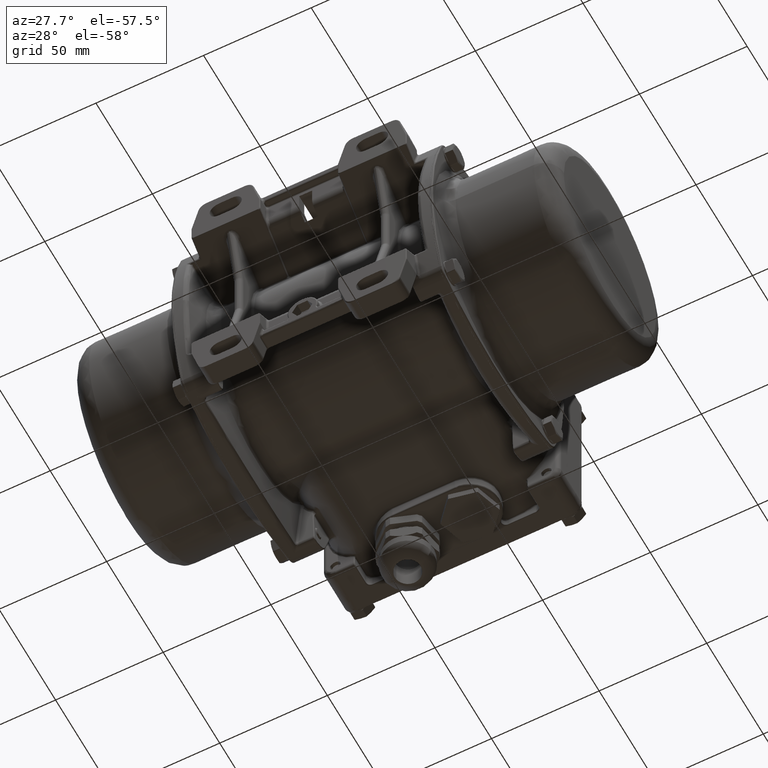
[diagram: clean part render]
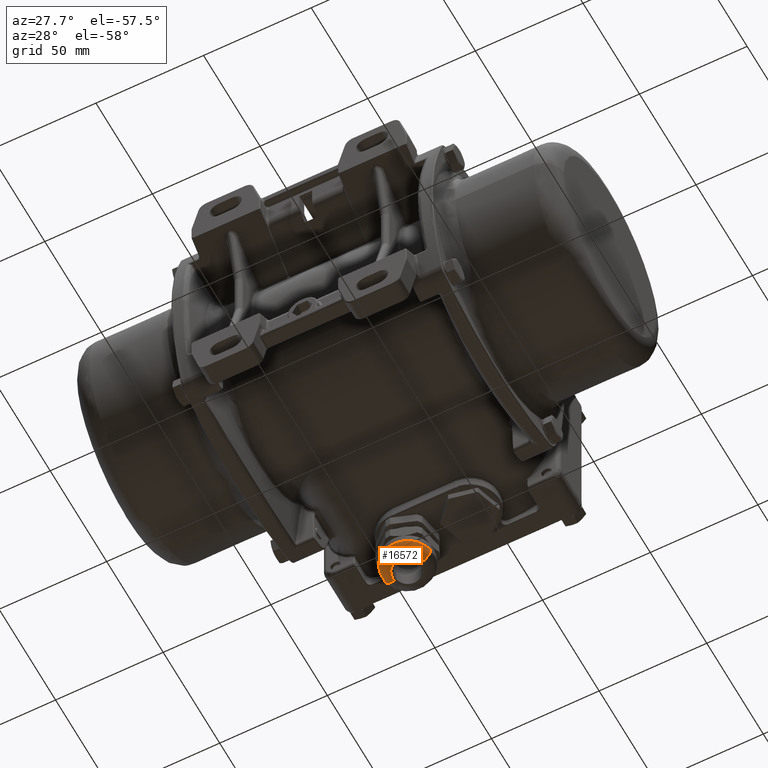
[diagram: same view with one face highlighted and labeled with its STEP entity id]
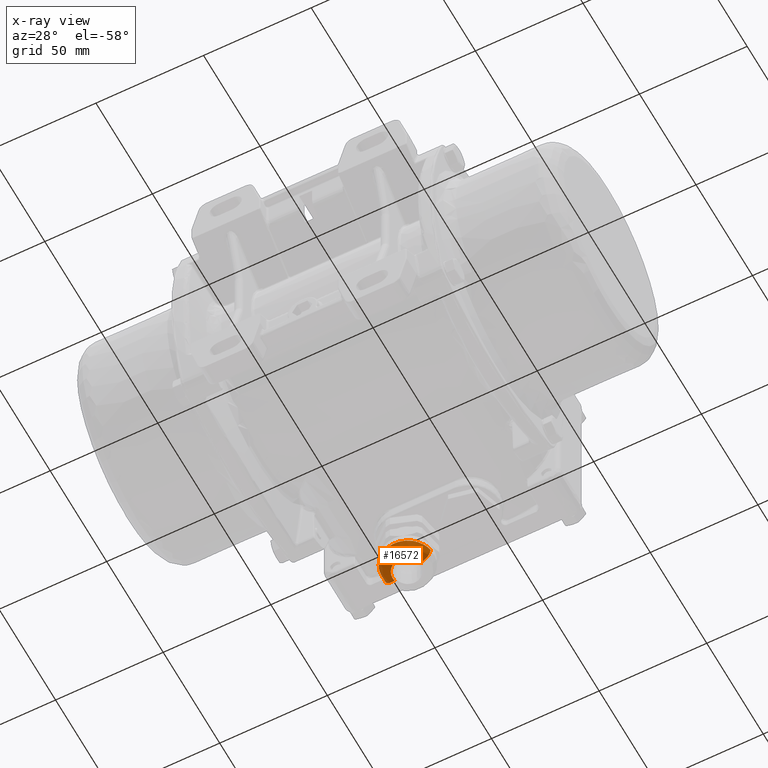
[diagram: x-ray of the same camera — body ghosted, the highlighted face saturated]
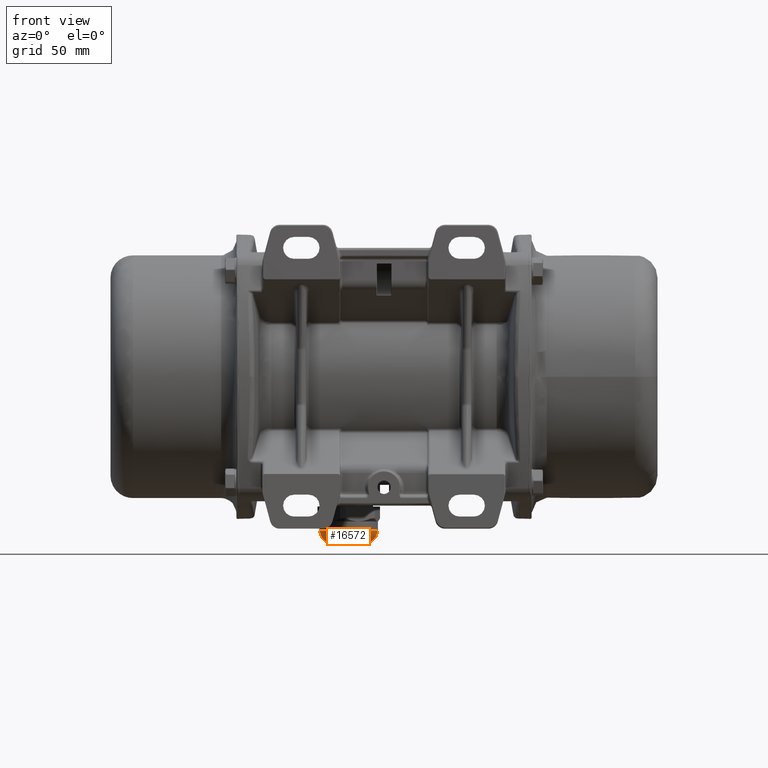
[diagram: same view with one face highlighted and labeled with its STEP entity id]
A machine part, auxiliary view. The second image highlights one B-rep face of the part: STEP entity #16572.
The next image is the same camera in x-ray: the body ghosted, the highlighted face saturated — about 0% of this face is hidden behind the body in this view.
A second angle (front view) of the same face is appended — the face is thin or edge-on in the first view.
In plain terms, the highlighted face is a freeform B-spline surface patch.
Its self-contained STEP definition (entity closure, byte-faithful):
#556 = CARTESIAN_POINT ( 'NONE',  ( 66.95013515293381100, 10.06078733776011300, -65.46505236173264600 ) ) ;
#1284 = CARTESIAN_POINT ( 'NONE',  ( 51.46316612567327600, 3.307523057532178300, -64.15046102098554600 ) ) ;
#2000 = CARTESIAN_POINT ( 'NONE',  ( 62.43416385365141300, 10.27122674344412600, -68.50034515125868500 ) ) ;
#2712 = CARTESIAN_POINT ( 'NONE',  ( 65.91203985066276500, 10.48163224879457700, -67.12712782023533000 ) ) ;
#3438 = CARTESIAN_POINT ( 'NONE',  ( 49.36679815098313600, 4.407673035038730100, -64.15046102094613900 ) ) ;
#4182 = CARTESIAN_POINT ( 'NONE',  ( 47.70873580315965500, 6.081867185871659300, -65.46505248905720000 ) ) ;
#4394 = CARTESIAN_POINT ( 'NONE',  ( 45.95817358068363500, 7.681019920902243400, -63.49999999999998600 ) ) ;
#4890 = CARTESIAN_POINT ( 'NONE',  ( 47.52533990418348300, 5.895665019205376100, -64.15046102095598700 ) ) ;
#5599 = CARTESIAN_POINT ( 'NONE',  ( 45.30479039199027400, 14.41878267970982800, -67.12712772781769400 ) ) ;
#6312 = CARTESIAN_POINT ( 'NONE',  ( 47.19400036811182300, 16.18220602149885700, -68.23964003526738500 ) ) ;
#6966 = CARTESIAN_POINT ( 'NONE',  ( 63.51440539744434900, 13.06450110997006300, -68.49999999999998600 ) ) ;
#7093 = CARTESIAN_POINT ( 'NONE',  ( 59.95841196726989600, 8.672075616455883200, -68.49999999999998600 ) ) ;
#7602 = CARTESIAN_POINT ( 'NONE',  ( 50.71539552742847000, 3.572525763793573500, -63.49999999999998600 ) ) ;
#8384 = CARTESIAN_POINT ( 'NONE',  ( 66.43829632553101300, 12.50594701214672700, -67.12706455736473300 ) ) ;
#8850 = EDGE_LOOP ( 'NONE', ( #200078, #96929, #212489, #209557, #190798 ) ) ;
#9262 = CARTESIAN_POINT ( 'NONE',  ( 50.17206763606254300, 10.54156507904071700, -68.49999999999998600 ) ) ;
#13388 = VERTEX_POINT ( 'NONE', #20500 ) ;
#16572 = ADVANCED_FACE ( 'NONE', ( #41511 ), #17612, .F. ) ;
#16695 = CARTESIAN_POINT ( 'NONE',  ( 67.19234302605613600, 9.962596015062656500, -64.15046125643542000 ) ) ;
#17431 = CARTESIAN_POINT ( 'NONE',  ( 59.95841196726989600, 8.672075616455883200, -68.49999999999998600 ) ) ;
#17612 = B_SPLINE_SURFACE_WITH_KNOTS ( 'NONE', 3, 3, ( 
 ( #49730, #167171, #64437, #198756, #32143, #32891, #150302 ),
 ( #200957, #98196, #66614, #115080, #184047, #83477, #214235 ),
 ( #113612, #134141, #18129, #2712, #556, #16695, #119451 ),
 ( #170048, #2000, #19583, #68793, #167867, #117280, #101838 ),
 ( #34333, #186224, #184774, #18845, #203856, #33621, #120175 ),
 ( #17431, #135597, #51165, #86367, #35069, #52606, #153195 ),
 ( #151757, #151031, #103278, #67352, #134862, #186938, #137023 ),
 ( #187674, #53338, #217875, #36505, #168582, #153941, #170763 ),
 ( #85659, #118003, #68074, #84922, #69537, #70263, #35799 ),
 ( #87075, #100371, #50443, #84194, #185516, #201702, #152475 ),
 ( #203123, #51894, #202407, #102553, #101112, #1284, #118721 ),
 ( #169319, #136322, #37947, #73134, #104713, #3438, #206020 ),
 ( #21715, #23163, #54078, #38654, #4182, #4890, #88545 ),
 ( #156066, #55473, #72401, #157499, #155354, #139170, #70956 ),
 ( #156788, #89245, #39365, #190529, #207453, #105420, #188402 ),
 ( #189104, #206749, #56190, #106136, #40051, #56907, #189807 ),
 ( #174347, #20304, #121609, #5599, #139887, #173627, #89950 ),
 ( #122346, #172932, #120887, #22441, #137754, #106844, #172222 ),
 ( #37211, #123076, #6312, #21007, #154641, #123770, #140617 ) ),
 .UNSPECIFIED., .F., .F., .F.,
 ( 4, 1, 1, 1, 1, 1, 1, 1, 1, 1, 1, 1, 1, 1, 1, 1, 4 ),
 ( 4, 1, 1, 1, 4 ),
 ( 0.0000000000000000000, 1.963022545427453000, 3.926045090854906100, 5.889067636282359100, 7.852090181709811200, 9.815112727137265100, 11.77813527256471800, 13.74115781799217100, 15.70418036341962400, 17.66720290884707700, 19.63022545427453000, 21.59324799970198000, 23.55627054512943600, 25.51929309055689300, 27.48231563598434200, 29.44533818141179200, 31.40836072683924800 ),
 ( 0.0000000000000000000, 1.950903220161281900, 3.901806440322567000, 5.852709660483847100, 7.803612880645125900 ),
 .UNSPECIFIED. ) ;
#18129 = CARTESIAN_POINT ( 'NONE',  ( 64.36206233175231300, 11.10999474077797400, -68.23963979292247500 ) ) ;
#18845 = CARTESIAN_POINT ( 'NONE',  ( 63.62004762917300100, 6.994727525972228600, -67.12712774671126700 ) ) ;
#19583 = CARTESIAN_POINT ( 'NONE',  ( 63.54021750421337300, 9.544290293005444100, -68.23964016262904400 ) ) ;
#20304 = CARTESIAN_POINT ( 'NONE',  ( 48.30075180579000000, 14.44153028160994400, -68.50034541605668900 ) ) ;
#20500 = CARTESIAN_POINT ( 'NONE',  ( 44.21312823790509600, 16.75164530099478100, -63.49999999999998600 ) ) ;
#20522 = CARTESIAN_POINT ( 'NONE',  ( 44.21312823790509600, 16.75164530099478100, -63.49999999999998600 ) ) ;
#20881 = CARTESIAN_POINT ( 'NONE',  ( 67.59091257728589100, 11.22266954230586900, -63.50000000000000000 ) ) ;
#21007 = CARTESIAN_POINT ( 'NONE',  ( 45.56174005493043900, 16.49401850324504400, -67.12712772781769400 ) ) ;
#21598 = CARTESIAN_POINT ( 'NONE',  ( 48.15657796393183800, 5.418111783793714100, -63.49999999999998600 ) ) ;
#21715 = CARTESIAN_POINT ( 'NONE',  ( 51.05629961203930400, 9.480654387476654700, -68.49999999999998600 ) ) ;
#22441 = CARTESIAN_POINT ( 'NONE',  ( 45.43123219156309000, 15.81084249714141700, -67.12712772781769400 ) ) ;
#23031 = CARTESIAN_POINT ( 'NONE',  ( 53.72218399274507300, 2.577958439561184500, -63.49999999999998600 ) ) ;
#23100 = CARTESIAN_POINT ( 'NONE',  ( 62.87565481506324300, 13.18652233581294600, -68.49999999999998600 ) ) ;
#23163 = CARTESIAN_POINT ( 'NONE',  ( 50.59714195978249100, 9.014470845920284200, -68.50034541606078200 ) ) ;
#23922 = CARTESIAN_POINT ( 'NONE',  ( 61.88735899625778100, 10.63060567765260900, -68.49999999999998600 ) ) ;
#25401 = CARTESIAN_POINT ( 'NONE',  ( 51.05629961203930400, 9.480654387476654700, -68.49999999999998600 ) ) ;
#27323 = CARTESIAN_POINT ( 'NONE',  ( 67.78684601957853300, 12.24833208181773100, -63.50000000000000000 ) ) ;
#30508 = EDGE_CURVE ( 'NONE', #103960, #79296, #169680, .T. ) ;
#31970 = CARTESIAN_POINT ( 'NONE',  ( 44.21312823790509600, 16.75164530099478100, -63.49999999999998600 ) ) ;
#32143 = CARTESIAN_POINT ( 'NONE',  ( 67.53127364002497800, 12.29715435439938900, -65.46513908671637700 ) ) ;
#32891 = CARTESIAN_POINT ( 'NONE',  ( 67.78684601957853300, 12.24833208181772700, -64.15030107338709800 ) ) ;
#33621 = CARTESIAN_POINT ( 'NONE',  ( 64.60430288152517200, 6.025300482455281600, -64.15046106909481700 ) ) ;
#34333 = CARTESIAN_POINT ( 'NONE',  ( 61.01931685657044100, 9.556277223413431400, -68.49999999999998600 ) ) ;
#35069 = CARTESIAN_POINT ( 'NONE',  ( 62.63881594446512900, 4.725768178001716000, -65.46505249793531800 ) ) ;
#35799 = CARTESIAN_POINT ( 'NONE',  ( 56.09168484121101300, 2.422982268423377900, -63.50000000000000000 ) ) ;
#36505 = CARTESIAN_POINT ( 'NONE',  ( 58.16616229884181200, 4.026140366879652700, -67.12712772721326400 ) ) ;
#37211 = CARTESIAN_POINT ( 'NONE',  ( 49.12431944242038600, 15.81345504699956500, -68.49999999999998600 ) ) ;
#37947 = CARTESIAN_POINT ( 'NONE',  ( 51.04417421136663100, 6.959780133537900100, -68.23964003527555600 ) ) ;
#38654 = CARTESIAN_POINT ( 'NONE',  ( 48.49476231141753100, 6.879921230219592200, -67.12712772781843300 ) ) ;
#39365 = CARTESIAN_POINT ( 'NONE',  ( 47.69026385598824200, 10.98383654015614600, -68.23964003526730000 ) ) ;
#40051 = CARTESIAN_POINT ( 'NONE',  ( 44.42920587790830900, 12.10694889865650700, -65.46505248905825200 ) ) ;
#41511 = FACE_OUTER_BOUND ( 'NONE', #8850, .T. ) ;
#41571 = CARTESIAN_POINT ( 'NONE',  ( 49.12431944242039400, 15.81345504699957200, -68.49999999999998600 ) ) ;
#42272 = CARTESIAN_POINT ( 'NONE',  ( 62.78982667100034800, 12.73723347949988500, -68.49999999999998600 ) ) ;
#49730 = CARTESIAN_POINT ( 'NONE',  ( 62.87565481506324300, 13.18652233581294600, -68.49999999999998600 ) ) ;
#50443 = CARTESIAN_POINT ( 'NONE',  ( 54.30692590782992800, 5.637236875940513600, -68.23964003539055100 ) ) ;
#51165 = CARTESIAN_POINT ( 'NONE',  ( 61.06972555668544100, 7.035909903496902400, -68.23964005216375000 ) ) ;
#51894 = CARTESIAN_POINT ( 'NONE',  ( 53.10762585524018700, 7.364451685974603200, -68.50034541612399200 ) ) ;
#52606 = CARTESIAN_POINT ( 'NONE',  ( 62.78566159900739100, 4.509570133320734100, -64.15046100453648100 ) ) ;
#53338 = CARTESIAN_POINT ( 'NONE',  ( 57.55936867151942900, 6.960097188372807300, -68.50034541276132000 ) ) ;
#54078 = CARTESIAN_POINT ( 'NONE',  ( 49.66837705000191500, 8.071494260891871200, -68.23964003526542400 ) ) ;
#55473 = CARTESIAN_POINT ( 'NONE',  ( 49.63078467212742600, 10.17391633782124500, -68.50034541605576500 ) ) ;
#56055 = CARTESIAN_POINT ( 'NONE',  ( 48.94684895244375200, 4.735583157795245400, -63.49999999999998600 ) ) ;
#56190 = CARTESIAN_POINT ( 'NONE',  ( 47.16396560318127500, 12.67254500701921000, -68.23964003526739900 ) ) ;
#56842 = CARTESIAN_POINT ( 'NONE',  ( 67.78684601957853300, 12.24833208181773100, -63.50000000000000000 ) ) ;
#56907 = CARTESIAN_POINT ( 'NONE',  ( 44.17326937977600200, 12.05401675767393700, -64.15046102095406900 ) ) ;
#56963 = CARTESIAN_POINT ( 'NONE',  ( 49.51179933766034200, 11.75459576910185400, -68.49999999999998600 ) ) ;
#57678 = CARTESIAN_POINT ( 'NONE',  ( 52.13051472755583400, 8.612633902131607400, -68.49999999999998600 ) ) ;
#58407 = CARTESIAN_POINT ( 'NONE',  ( 62.52905093777183500, 11.85309945894523600, -68.49999999999998600 ) ) ;
#61614 = EDGE_CURVE ( 'NONE', #216432, #13388, #111321, .T. ) ;
#64437 = CARTESIAN_POINT ( 'NONE',  ( 64.80588957472937800, 12.81778746803246900, -68.23980611942111800 ) ) ;
#66614 = CARTESIAN_POINT ( 'NONE',  ( 64.69599422653318800, 12.24236069607551000, -68.23975093530432900 ) ) ;
#67352 = CARTESIAN_POINT ( 'NONE',  ( 60.16788579838684800, 4.649988916659539000, -67.12712772984782800 ) ) ;
#67899 = CARTESIAN_POINT ( 'NONE',  ( 45.56174005493043900, 16.49401850324504400, -67.12712772781769400 ) ) ;
#68074 = CARTESIAN_POINT ( 'NONE',  ( 56.06849468020088500, 5.477232106590475000, -68.23964003481653200 ) ) ;
#68793 = CARTESIAN_POINT ( 'NONE',  ( 64.93785982033999500, 8.625711755922898400, -67.12712767924892900 ) ) ;
#69537 = CARTESIAN_POINT ( 'NONE',  ( 56.08969785315328200, 2.684677646524136200, -65.46505248882137100 ) ) ;
#70263 = CARTESIAN_POINT ( 'NONE',  ( 56.09168218316762700, 2.423332344844739700, -64.15046102139216100 ) ) ;
#70956 = CARTESIAN_POINT ( 'NONE',  ( 46.00926799843450300, 7.714119641636771400, -63.49999999999998600 ) ) ;
#72268 = CARTESIAN_POINT ( 'NONE',  ( 66.92629408556335600, 9.213007443819499500, -63.50000000000000000 ) ) ;
#72401 = CARTESIAN_POINT ( 'NONE',  ( 48.53590011408754600, 9.430251828933698700, -68.23964003526784000 ) ) ;
#73000 = CARTESIAN_POINT ( 'NONE',  ( 56.88585161565311000, 2.394419281542863800, -63.50000000000000000 ) ) ;
#73134 = CARTESIAN_POINT ( 'NONE',  ( 50.12557451725989200, 5.562141967965781800, -67.12712772781456700 ) ) ;
#73195 = CARTESIAN_POINT ( 'NONE',  ( 49.03835398360144600, 15.36344738230058300, -68.49999999999998600 ) ) ;
#77291 = B_SPLINE_CURVE_WITH_KNOTS ( 'NONE', 3,
 ( #41571, #73195, #109804, #90741, #56963, #9262, #25401, #57678, #190593, #125275, #142849, #159009, #92936, #7093, #124544, #23922, #58407, #42272, #126682 ),
 .UNSPECIFIED., .F., .F.,
 ( 4, 1, 1, 1, 1, 1, 1, 1, 1, 1, 1, 1, 1, 1, 1, 1, 4 ),
 ( 0.0000000000000000000, 0.06250000000000011100, 0.1250000000000000000, 0.1874999999999998900, 0.2500000000000000000, 0.3125000000000001100, 0.3750000000000000000, 0.4375000000000000000, 0.5000000000000000000, 0.5625000000000000000, 0.6250000000000000000, 0.6875000000000000000, 0.7500000000000000000, 0.8125000000000000000, 0.8750000000000000000, 0.9375000000000000000, 1.000000000000000000 ),
 .UNSPECIFIED. ) ;
#79296 = VERTEX_POINT ( 'NONE', #27323 ) ;
#83477 = CARTESIAN_POINT ( 'NONE',  ( 67.63960045167353000, 11.47815158879516400, -64.15035390280159800 ) ) ;
#84194 = CARTESIAN_POINT ( 'NONE',  ( 53.99310342387620000, 3.994454704190793800, -67.12712772777071300 ) ) ;
#84922 = CARTESIAN_POINT ( 'NONE',  ( 56.08119310462614500, 3.804791767392782900, -67.12712772798961700 ) ) ;
#85659 = CARTESIAN_POINT ( 'NONE',  ( 56.05347746101551800, 7.455068277999569800, -68.49999999999998600 ) ) ;
#86367 = CARTESIAN_POINT ( 'NONE',  ( 62.00944226791056500, 5.652382987741514600, -67.12712772137433600 ) ) ;
#87075 = CARTESIAN_POINT ( 'NONE',  ( 54.67805392078891900, 7.579999151749366800, -68.49999999999998600 ) ) ;
#88545 = CARTESIAN_POINT ( 'NONE',  ( 47.52509424296608400, 5.895415598955516100, -63.50000000000000000 ) ) ;
#89245 = CARTESIAN_POINT ( 'NONE',  ( 48.90919226278002400, 11.49961036307198200, -68.50034541605688800 ) ) ;
#89950 = CARTESIAN_POINT ( 'NONE',  ( 43.92298091741079700, 14.40829093849955800, -63.49999999999998600 ) ) ;
#90741 = CARTESIAN_POINT ( 'NONE',  ( 49.10086845750378600, 13.07313036980536400, -68.49999999999998600 ) ) ;
#91290 = CARTESIAN_POINT ( 'NONE',  ( 65.18628340633657100, 6.566820777356132200, -63.50000000000000000 ) ) ;
#92936 = CARTESIAN_POINT ( 'NONE',  ( 58.74537972249696300, 8.011799180699505000, -68.49999999999998600 ) ) ;
#96929 = ORIENTED_EDGE ( 'NONE', *, *, #157010, .T. ) ;
#98196 = CARTESIAN_POINT ( 'NONE',  ( 63.42055275639345500, 12.57348650324333100, -68.50011479429657900 ) ) ;
#98764 = CARTESIAN_POINT ( 'NONE',  ( 44.21346990288056100, 16.75158003235897700, -64.15046102095408300 ) ) ;
#100371 = CARTESIAN_POINT ( 'NONE',  ( 54.55527598503464000, 6.937287382343134500, -68.50034541580060900 ) ) ;
#100935 = CARTESIAN_POINT ( 'NONE',  ( 49.12431944242039400, 15.81345504699957200, -68.49999999999998600 ) ) ;
#101112 = CARTESIAN_POINT ( 'NONE',  ( 51.56134535886200600, 3.549734000543095700, -65.46505248904122700 ) ) ;
#101838 = CARTESIAN_POINT ( 'NONE',  ( 66.09262461591203000, 7.866760667828582900, -63.50000000000000000 ) ) ;
#102553 = CARTESIAN_POINT ( 'NONE',  ( 51.98213710125499900, 4.587839121412138800, -67.12712772783002900 ) ) ;
#103278 = CARTESIAN_POINT ( 'NONE',  ( 59.51613886028145800, 6.190263213701571800, -68.23964002994377200 ) ) ;
#103794 = VERTEX_POINT ( 'NONE', #126775 ) ;
#103960 = VERTEX_POINT ( 'NONE', #21598 ) ;
#104713 = CARTESIAN_POINT ( 'NONE',  ( 49.51034390853110500, 4.626076144186374300, -65.46505248906254300 ) ) ;
#105420 = CARTESIAN_POINT ( 'NONE',  ( 44.87770189725219400, 9.793737248383104400, -64.15046102095416800 ) ) ;
#106136 = CARTESIAN_POINT ( 'NONE',  ( 45.52613810529422300, 12.33381365507864100, -67.12712772781769400 ) ) ;
#106716 = CARTESIAN_POINT ( 'NONE',  ( 62.81984061430771500, 4.459113975446224600, -63.50000000000000000 ) ) ;
#106844 = CARTESIAN_POINT ( 'NONE',  ( 44.06610481669200400, 15.98016068318128500, -64.15046102095408300 ) ) ;
#108196 = CARTESIAN_POINT ( 'NONE',  ( 67.78684601957853300, 12.24833208181772700, -64.15030107338709800 ) ) ;
#109804 = CARTESIAN_POINT ( 'NONE',  ( 48.95506683879870700, 14.44649833554401400, -68.49999999999998600 ) ) ;
#111321 = B_SPLINE_CURVE_WITH_KNOTS ( 'NONE', 3,
 ( #100935, #117823, #116370, #67899, #135422, #98764, #31970 ),
 .UNSPECIFIED., .F., .F.,
 ( 4, 1, 1, 1, 4 ),
 ( 0.0000000000000000000, 1.950903220161281900, 3.901806440322567000, 5.852709660483847100, 7.803612880645125000 ),
 .UNSPECIFIED. ) ;
#113612 = CARTESIAN_POINT ( 'NONE',  ( 62.52905093777183500, 11.85309945894523600, -68.49999999999998600 ) ) ;
#115080 = CARTESIAN_POINT ( 'NONE',  ( 66.30797581814445600, 11.82386347910523800, -67.12708551032861200 ) ) ;
#116370 = CARTESIAN_POINT ( 'NONE',  ( 47.19400036811182300, 16.18220602149885700, -68.23964003526738500 ) ) ;
#117280 = CARTESIAN_POINT ( 'NONE',  ( 66.09233228708022500, 7.866952796377904500, -64.15046089720196700 ) ) ;
#117823 = CARTESIAN_POINT ( 'NONE',  ( 48.48572417888637200, 15.93544660211236200, -68.50034541605668900 ) ) ;
#118003 = CARTESIAN_POINT ( 'NONE',  ( 56.05844551275546200, 6.800753233954776700, -68.50034541699406500 ) ) ;
#118721 = CARTESIAN_POINT ( 'NONE',  ( 51.46303461327558200, 3.307198612730275500, -63.49999999999998600 ) ) ;
#119451 = CARTESIAN_POINT ( 'NONE',  ( 67.19266794422183900, 9.962464292901657400, -63.50000000000000000 ) ) ;
#120175 = CARTESIAN_POINT ( 'NONE',  ( 64.60455237644804100, 6.025054746275713100, -63.50000000000000000 ) ) ;
#120887 = CARTESIAN_POINT ( 'NONE',  ( 47.08390041465754200, 15.60586031686207600, -68.23964003526738500 ) ) ;
#121609 = CARTESIAN_POINT ( 'NONE',  ( 46.97723070228580900, 14.43148110973802300, -68.23964003526738500 ) ) ;
#122346 = CARTESIAN_POINT ( 'NONE',  ( 49.03835398360144600, 15.36344738230058300, -68.49999999999998600 ) ) ;
#123076 = CARTESIAN_POINT ( 'NONE',  ( 48.48572417888637200, 15.93544660211236200, -68.50034541605668900 ) ) ;
#123770 = CARTESIAN_POINT ( 'NONE',  ( 44.21346990288056100, 16.75158003235897700, -64.15046102095408300 ) ) ;
#124347 = CARTESIAN_POINT ( 'NONE',  ( 67.78684601957853300, 12.24833208181773100, -63.50000000000000000 ) ) ;
#124544 = CARTESIAN_POINT ( 'NONE',  ( 61.01931685657044100, 9.556277223413431400, -68.49999999999998600 ) ) ;
#125275 = CARTESIAN_POINT ( 'NONE',  ( 54.67805392078891900, 7.579999151749366800, -68.49999999999998600 ) ) ;
#126682 = CARTESIAN_POINT ( 'NONE',  ( 62.87565481506324300, 13.18652233581294600, -68.49999999999998600 ) ) ;
#126775 = CARTESIAN_POINT ( 'NONE',  ( 62.87565481506324300, 13.18652233581294600, -68.49999999999998600 ) ) ;
#130714 = B_SPLINE_CURVE_WITH_KNOTS ( 'NONE', 3,
 ( #23100, #6966, #139094, #8384, #157430, #108196, #56842 ),
 .UNSPECIFIED., .F., .F.,
 ( 4, 1, 1, 1, 4 ),
 ( 0.0000000000000000000, 1.950903220161281900, 3.901806440322567000, 5.852709660483847100, 7.803612880645125000 ),
 .UNSPECIFIED. ) ;
#134141 = CARTESIAN_POINT ( 'NONE',  ( 63.13545426294803100, 11.60726292266915200, -68.50034591991642700 ) ) ;
#134862 = CARTESIAN_POINT ( 'NONE',  ( 60.60439222428259100, 3.618392772525168800, -65.46505248626128500 ) ) ;
#135422 = CARTESIAN_POINT ( 'NONE',  ( 44.46853644018978000, 16.70285439137725100, -65.46505248905825200 ) ) ;
#135597 = CARTESIAN_POINT ( 'NONE',  ( 60.32606083144602100, 8.130793235224816200, -68.50034538092741300 ) ) ;
#136322 = CARTESIAN_POINT ( 'NONE',  ( 51.77112755811505500, 8.065830732644599300, -68.50034541603970700 ) ) ;
#137023 = CARTESIAN_POINT ( 'NONE',  ( 60.70637443232207200, 3.377378101623265600, -63.49999999999998600 ) ) ;
#137754 = CARTESIAN_POINT ( 'NONE',  ( 44.32436041329111000, 15.94812896954362100, -65.46505248905825200 ) ) ;
#139094 = CARTESIAN_POINT ( 'NONE',  ( 64.80588957472937800, 12.81778746803246900, -68.23980611942111800 ) ) ;
#139170 = CARTESIAN_POINT ( 'NONE',  ( 46.00955759881309600, 7.714316343217536300, -64.15046102095364200 ) ) ;
#139887 = CARTESIAN_POINT ( 'NONE',  ( 44.18467629138486100, 14.41027792743701100, -65.46505248905823700 ) ) ;
#140474 = EDGE_CURVE ( 'NONE', #216432, #103794, #77291, .T. ) ;
#140617 = CARTESIAN_POINT ( 'NONE',  ( 44.21312823790508900, 16.75164530099478500, -63.50000000000000000 ) ) ;
#140842 = CARTESIAN_POINT ( 'NONE',  ( 43.89440780572740400, 13.61425968067582000, -63.49999999999998600 ) ) ;
#142849 = CARTESIAN_POINT ( 'NONE',  ( 56.05347746101551800, 7.455068277999569800, -68.49999999999998600 ) ) ;
#150302 = CARTESIAN_POINT ( 'NONE',  ( 67.78684601957853300, 12.24833208181772700, -63.50000000000000000 ) ) ;
#151031 = CARTESIAN_POINT ( 'NONE',  ( 59.00036509602917100, 7.409191950790565300, -68.50034542712504000 ) ) ;
#151757 = CARTESIAN_POINT ( 'NONE',  ( 58.74537972249696300, 8.011799180699505000, -68.49999999999998600 ) ) ;
#152475 = CARTESIAN_POINT ( 'NONE',  ( 53.73381591510828100, 2.637149480565889300, -63.49999999999998600 ) ) ;
#153195 = CARTESIAN_POINT ( 'NONE',  ( 62.78585828050424300, 4.509280562919907500, -63.50000000000000000 ) ) ;
#153941 = CARTESIAN_POINT ( 'NONE',  ( 58.44595921406713800, 2.673271729019131000, -64.15046101941399600 ) ) ;
#154641 = CARTESIAN_POINT ( 'NONE',  ( 44.46853644018978000, 16.70285439137725100, -65.46505248905825200 ) ) ;
#155354 = CARTESIAN_POINT ( 'NONE',  ( 46.22575583766632000, 7.861161922450992100, -65.46505248905846500 ) ) ;
#156066 = CARTESIAN_POINT ( 'NONE',  ( 50.17206763606254300, 10.54156507904071700, -68.49999999999998600 ) ) ;
#156788 = CARTESIAN_POINT ( 'NONE',  ( 49.51179933766034200, 11.75459576910185400, -68.49999999999998600 ) ) ;
#157010 = EDGE_CURVE ( 'NONE', #103794, #79296, #130714, .T. ) ;
#157430 = CARTESIAN_POINT ( 'NONE',  ( 67.53127364002497800, 12.29715435439938900, -65.46513908671637700 ) ) ;
#157499 = CARTESIAN_POINT ( 'NONE',  ( 47.15237168742380900, 8.490535417379964800, -67.12712772781752300 ) ) ;
#159009 = CARTESIAN_POINT ( 'NONE',  ( 57.42684553837715100, 7.600870480940442600, -68.49999999999998600 ) ) ;
#167171 = CARTESIAN_POINT ( 'NONE',  ( 63.51440539744434900, 13.06450110997006300, -68.49999999999998600 ) ) ;
#167867 = CARTESIAN_POINT ( 'NONE',  ( 65.87392821006230300, 8.010495457647616400, -65.46505255597165300 ) ) ;
#168582 = CARTESIAN_POINT ( 'NONE',  ( 58.39302706881035500, 2.929208214933995100, -65.46505248989096500 ) ) ;
#169319 = CARTESIAN_POINT ( 'NONE',  ( 52.13051472755583400, 8.612633902131607400, -68.49999999999998600 ) ) ;
#169680 = B_SPLINE_CURVE_WITH_KNOTS ( 'NONE', 3,
 ( #207320, #56055, #7602, #23031, #73000, #190402, #106716, #91290, #72268, #20881, #124347 ),
 .UNSPECIFIED., .F., .F.,
 ( 4, 1, 1, 1, 1, 1, 1, 1, 4 ),
 ( 0.0000000000000000000, 0.1249999999999999900, 0.2499999999999999700, 0.3749999999999999400, 0.5000000000000000000, 0.6250000000000000000, 0.7500000000000000000, 0.8750000000000000000, 1.000000000000000000 ),
 .UNSPECIFIED. ) ;
#170048 = CARTESIAN_POINT ( 'NONE',  ( 61.88735899625778100, 10.63060567765260900, -68.49999999999998600 ) ) ;
#170763 = CARTESIAN_POINT ( 'NONE',  ( 58.44603011668810700, 2.672928902036301400, -63.49999999999998600 ) ) ;
#172222 = CARTESIAN_POINT ( 'NONE',  ( 44.06575887992976000, 15.98020359008224600, -63.50000000000000000 ) ) ;
#172439 = CARTESIAN_POINT ( 'NONE',  ( 47.36628276516940900, 6.100612374011364000, -63.49999999999998600 ) ) ;
#172932 = CARTESIAN_POINT ( 'NONE',  ( 48.39177445768974900, 15.44364332186865600, -68.50034541605668900 ) ) ;
#173627 = CARTESIAN_POINT ( 'NONE',  ( 43.92333099286933200, 14.40829359653685100, -64.15046102095408300 ) ) ;
#174347 = CARTESIAN_POINT ( 'NONE',  ( 48.95506683879870700, 14.44649833554401400, -68.49999999999998600 ) ) ;
#184047 = CARTESIAN_POINT ( 'NONE',  ( 67.38738359903203400, 11.54363127631316200, -65.46511045897762000 ) ) ;
#184774 = CARTESIAN_POINT ( 'NONE',  ( 62.42847571676970400, 8.168347919074936000, -68.23963998572297400 ) ) ;
#185516 = CARTESIAN_POINT ( 'NONE',  ( 53.78292134017374300, 2.894204092515315600, -65.46505248912295400 ) ) ;
#186224 = CARTESIAN_POINT ( 'NONE',  ( 61.48549993937313500, 9.097117379847450300, -68.50034551906458100 ) ) ;
#186938 = CARTESIAN_POINT ( 'NONE',  ( 60.70623800415187100, 3.377700522476618300, -64.15046102612686200 ) ) ;
#187674 = CARTESIAN_POINT ( 'NONE',  ( 57.42684553837715100, 7.600870480940442600, -68.49999999999998600 ) ) ;
#188402 = CARTESIAN_POINT ( 'NONE',  ( 44.87737948688787500, 9.793600824598717800, -63.49999999999998600 ) ) ;
#189104 = CARTESIAN_POINT ( 'NONE',  ( 49.10086845750378600, 13.07313036980536400, -68.49999999999998600 ) ) ;
#189807 = CARTESIAN_POINT ( 'NONE',  ( 44.17292654947663500, 12.05394585437615600, -63.50000000000000000 ) ) ;
#190402 = CARTESIAN_POINT ( 'NONE',  ( 59.98871406685836400, 3.036278420192294100, -63.50000000000000000 ) ) ;
#190529 = CARTESIAN_POINT ( 'NONE',  ( 46.14998996274606900, 10.33208952217834700, -67.12712772781773700 ) ) ;
#190593 = CARTESIAN_POINT ( 'NONE',  ( 53.35343149471984200, 7.970861145511926300, -68.49999999999998600 ) ) ;
#190798 = ORIENTED_EDGE ( 'NONE', *, *, #61614, .F. ) ;
#191465 = CARTESIAN_POINT ( 'NONE',  ( 44.53651404393577500, 10.51100670520406800, -63.49999999999998600 ) ) ;
#195046 = B_SPLINE_CURVE_WITH_KNOTS ( 'NONE', 3,
 ( #20522, #205510, #140842, #191465, #4394, #172439, #204792 ),
 .UNSPECIFIED., .F., .F.,
 ( 4, 1, 1, 1, 4 ),
 ( 0.5000000000000000000, 0.6250000000000000000, 0.7500000000000000000, 0.8750000000000000000, 1.000000000000000000 ),
 .UNSPECIFIED. ) ;
#196436 = CARTESIAN_POINT ( 'NONE',  ( 49.12431944242039400, 15.81345504699957200, -68.49999999999998600 ) ) ;
#198756 = CARTESIAN_POINT ( 'NONE',  ( 66.43829632553101300, 12.50594701214672700, -67.12706455736473300 ) ) ;
#200078 = ORIENTED_EDGE ( 'NONE', *, *, #140474, .T. ) ;
#200957 = CARTESIAN_POINT ( 'NONE',  ( 62.78982667100034800, 12.73723347949988500, -68.49999999999998600 ) ) ;
#201702 = CARTESIAN_POINT ( 'NONE',  ( 53.73388160442900100, 2.637493347721620000, -64.15046102083439900 ) ) ;
#202407 = CARTESIAN_POINT ( 'NONE',  ( 52.61042048041818500, 6.137831974306688900, -68.23964003523501300 ) ) ;
#203123 = CARTESIAN_POINT ( 'NONE',  ( 53.35343149471984200, 7.970861145511926300, -68.49999999999998600 ) ) ;
#203856 = CARTESIAN_POINT ( 'NONE',  ( 64.41810099549888900, 6.208697160742106600, -65.46505246302832900 ) ) ;
#204792 = CARTESIAN_POINT ( 'NONE',  ( 48.15657796393183800, 5.418111783793714100, -63.49999999999998600 ) ) ;
#205510 = CARTESIAN_POINT ( 'NONE',  ( 44.01664216402053900, 15.72308987339124700, -63.49999999999998600 ) ) ;
#206020 = CARTESIAN_POINT ( 'NONE',  ( 49.36660586956585200, 4.407380481221155200, -63.49999999999998600 ) ) ;
#206749 = CARTESIAN_POINT ( 'NONE',  ( 48.46009512362427800, 12.94060724514633200, -68.50034541605664600 ) ) ;
#207320 = CARTESIAN_POINT ( 'NONE',  ( 48.15657796393183800, 5.418111783793714100, -63.49999999999998600 ) ) ;
#207453 = CARTESIAN_POINT ( 'NONE',  ( 45.11839409890900800, 9.895583046957368000, -65.46505248905819500 ) ) ;
#209557 = ORIENTED_EDGE ( 'NONE', *, *, #214908, .F. ) ;
#212489 = ORIENTED_EDGE ( 'NONE', *, *, #30508, .F. ) ;
#214235 = CARTESIAN_POINT ( 'NONE',  ( 67.63971205832785900, 11.47812261385247700, -63.50000000000000000 ) ) ;
#214908 = EDGE_CURVE ( 'NONE', #13388, #103960, #195046, .T. ) ;
#216432 = VERTEX_POINT ( 'NONE', #196436 ) ;
#217875 = CARTESIAN_POINT ( 'NONE',  ( 57.82743092571188000, 5.663967756784495000, -68.23964003685239300 ) ) ;